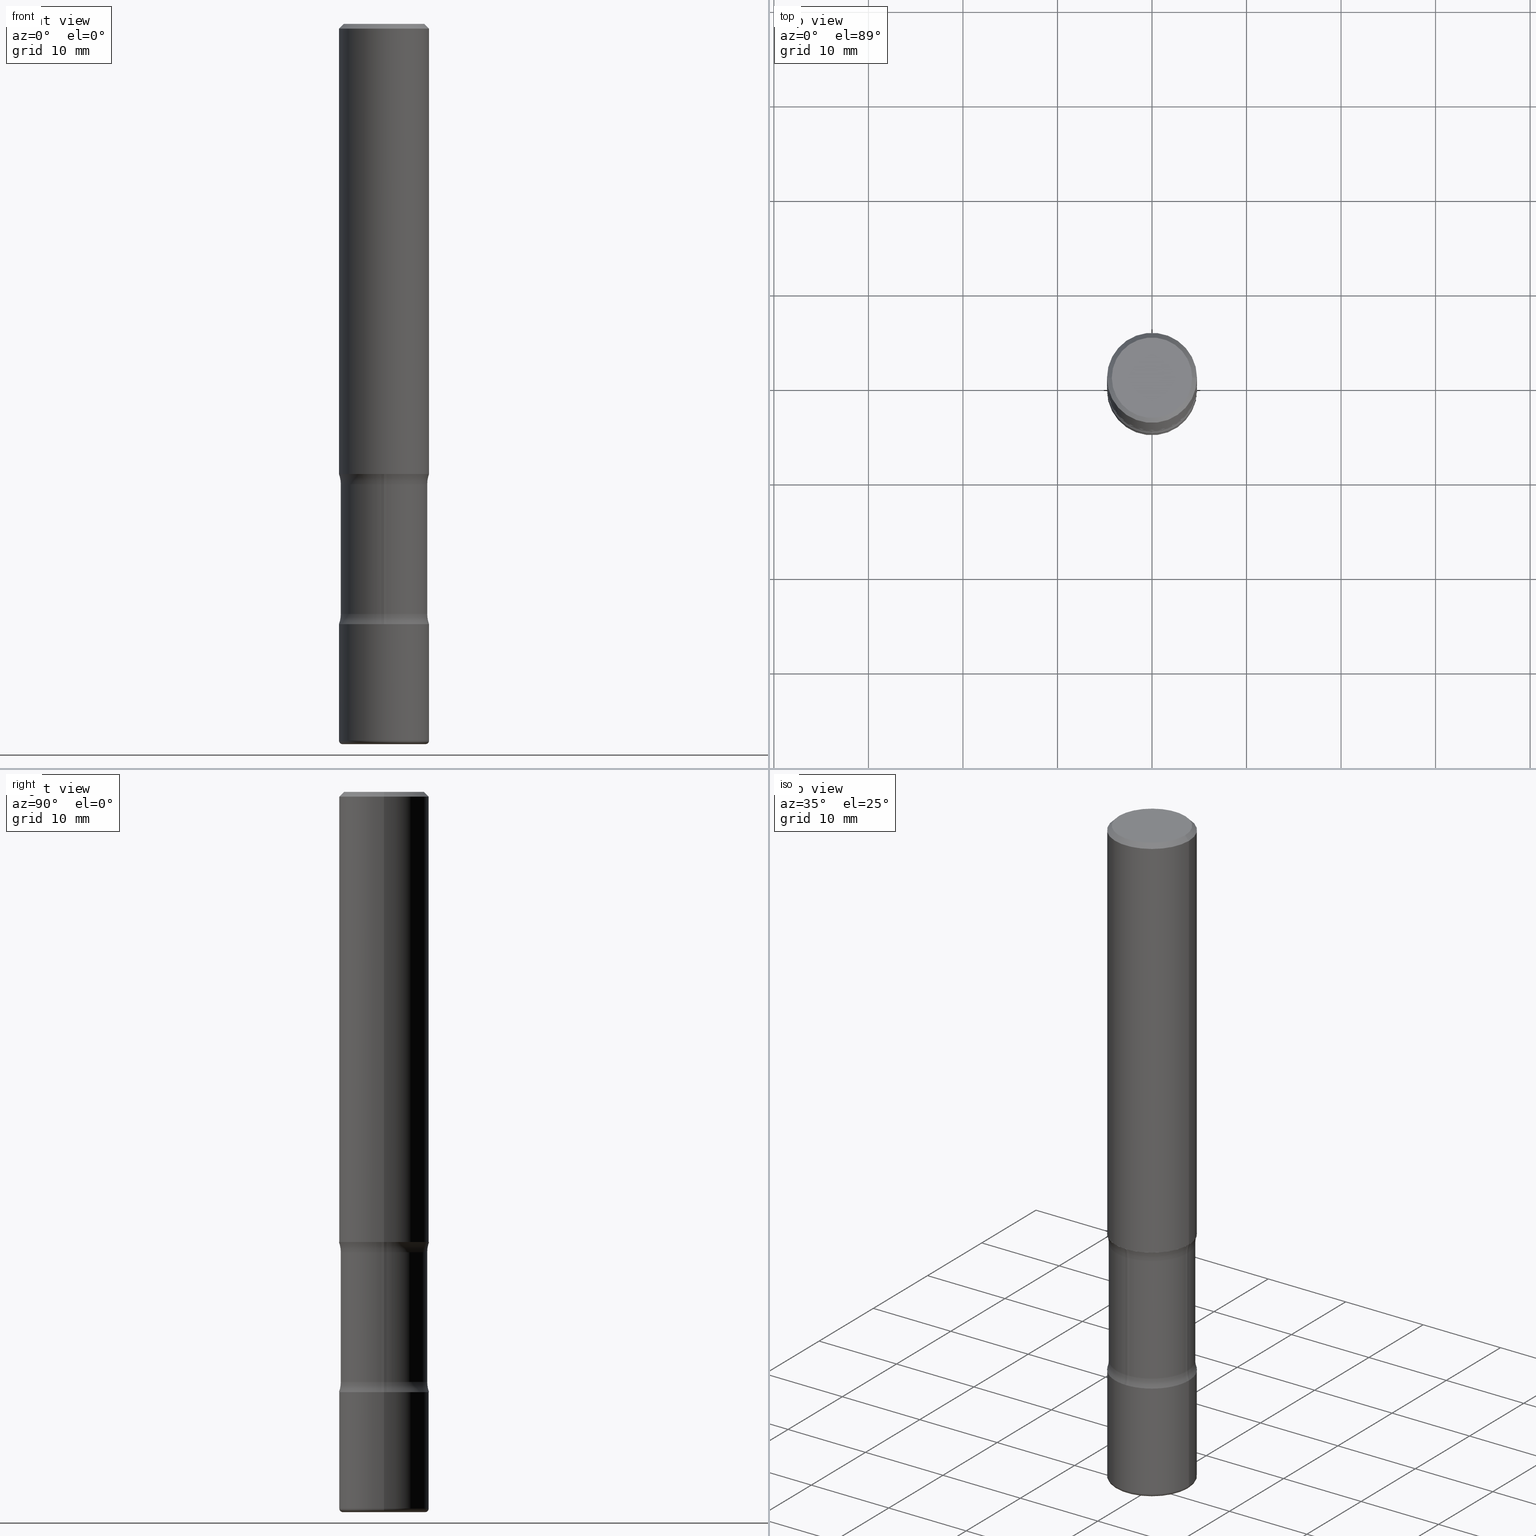
[diagram: canonical four-view strip — front | top / right | iso, engineering-drawing reading convention]
A machine part, canonical four-view strip (front | top / right | iso — engineering-drawing reading convention). The complete STEP part file that produces these views, byte-faithful:
ISO-10303-21;
HEADER;
FILE_DESCRIPTION (( 'STEP AP203' ),
    '1' );
FILE_NAME ('36239.STEP',
    '2023-03-11T07:12:13',
    ( '' ),
    ( '' ),
    'SwSTEP 2.0',
    'SolidWorks 2022',
    '' );
FILE_SCHEMA (( 'CONFIG_CONTROL_DESIGN' ));
ENDSEC;

DATA;
#1 = EDGE_LOOP ( 'NONE', ( #394, #315, #252, #613 ) ) ;
#2 = DIRECTION ( 'NONE',  ( 6.982962677686265133E-15, 1.000000000000000000, -3.035386659626957554E-15 ) ) ;
#3 = DIRECTION ( 'NONE',  ( -1.000000000000000000, 7.105427357601001859E-15, 0.000000000000000000 ) ) ;
#4 = EDGE_LOOP ( 'NONE', ( #538, #226, #294, #43 ) ) ;
#5 = FACE_OUTER_BOUND ( 'NONE', #420, .T. ) ;
#6 = DIRECTION ( 'NONE',  ( -2.445468806185136597E-29, 3.491481338843145583E-15, 1.000000000000000000 ) ) ;
#7 = AXIS2_PLACEMENT_3D ( 'NONE', #374, #740, #181 ) ;
#8 = AXIS2_PLACEMENT_3D ( 'NONE', #445, #66, #572 ) ;
#9 = ORIENTED_EDGE ( 'NONE', *, *, #385, .F. ) ;
#10 = DIRECTION ( 'NONE',  ( -2.445468806185136597E-29, 3.491481338843145583E-15, 1.000000000000000000 ) ) ;
#11 = CARTESIAN_POINT ( 'NONE',  ( 6.838086267733839931E-28, 7.694469178072711128E-14, -3.000000000000000888 ) ) ;
#12 = ORIENTED_EDGE ( 'NONE', *, *, #57, .T. ) ;
#13 = EDGE_CURVE ( 'NONE', #509, #795, #154, .T. ) ;
#14 = CARTESIAN_POINT ( 'NONE',  ( -0.1800000000000000488, -7.348630807762562010E-15, -2.457353194726920265 ) ) ;
#15 = DIRECTION ( 'NONE',  ( 2.445468806185136597E-29, -3.491481338843145583E-15, -1.000000000000000000 ) ) ;
#16 = DIRECTION ( 'NONE',  ( 1.000000000000000000, -6.982962677686267499E-15, 4.883557194083113462E-29 ) ) ;
#17 = EDGE_CURVE ( 'NONE', #686, #134, #622, .T. ) ;
#18 = CARTESIAN_POINT ( 'NONE',  ( 2.129803616694357811E-15, 0.3049999999999932765, -1.917646805273081290 ) ) ;
#19 = DIRECTION ( 'NONE',  ( 1.000000000000000000, -6.982962677686266711E-15, 0.000000000000000000 ) ) ;
#20 = AXIS2_PLACEMENT_3D ( 'NONE', #393, #564, #320 ) ;
#21 = DIRECTION ( 'NONE',  ( 2.552515368040489607E-29, -3.338184569554352070E-15, -1.000000000000000000 ) ) ;
#22 = CIRCLE ( 'NONE', #478, 0.1674999999999997602 ) ;
#23 = DATE_TIME_ROLE ( 'creation_date' ) ;
#24 = DIRECTION ( 'NONE',  ( -2.445468806185136877E-29, 3.491481338843145188E-15, 1.000000000000000000 ) ) ;
#25 = ADVANCED_FACE ( 'NONE', ( #82 ), #565, .T. ) ;
#26 = ORIENTED_EDGE ( 'NONE', *, *, #705, .T. ) ;
#27 = CALENDAR_DATE ( 2023, 11, 3 ) ;
#28 = DIRECTION ( 'NONE',  ( -0.7071067811865472397, 2.468850131082253905E-15, -0.7071067811865477948 ) ) ;
#29 = EDGE_CURVE ( 'NONE', #521, #38, #269, .T. ) ;
#30 = DIRECTION ( 'NONE',  ( 1.000000000000000000, -6.982962677686269077E-15, 0.000000000000000000 ) ) ;
#31 = PERSON_AND_ORGANIZATION ( #366, #157 ) ;
#32 = CARTESIAN_POINT ( 'NONE',  ( 1.026633993897603576E-29, -1.601363133021256370E-14, -2.500000000000000000 ) ) ;
#33 = ORIENTED_EDGE ( 'NONE', *, *, #222, .T. ) ;
#34 = CIRCLE ( 'NONE', #75, 0.1875000000000000278 ) ;
#35 = VECTOR ( 'NONE', #28, 39.37007874015748143 ) ;
#36 = PERSON_AND_ORGANIZATION ( #366, #157 ) ;
#37 = CARTESIAN_POINT ( 'NONE',  ( 0.1800000000000000211, -7.803460792314427030E-15, -1.875000000000000000 ) ) ;
#38 = VERTEX_POINT ( 'NONE', #706 ) ;
#39 = DIRECTION ( 'NONE',  ( 1.000000000000000000, -6.982962677686265922E-15, 4.876176775795935793E-29 ) ) ;
#40 = ORIENTED_EDGE ( 'NONE', *, *, #248, .T. ) ;
#41 = EDGE_CURVE ( 'NONE', #386, #255, #533, .T. ) ;
#42 = DIRECTION ( 'NONE',  ( 2.552515368040489607E-29, -3.338184569554351675E-15, -1.000000000000000000 ) ) ;
#43 = ORIENTED_EDGE ( 'NONE', *, *, #53, .F. ) ;
#44 = CIRCLE ( 'NONE', #774, 0.1249999999999999584 ) ;
#45 = AXIS2_PLACEMENT_3D ( 'NONE', #694, #209, #459 ) ;
#46 = CARTESIAN_POINT ( 'NONE',  ( 1.036015759855943540E-27, -1.479155932447654588E-13, -42.36470967184812508 ) ) ;
#47 = CIRCLE ( 'NONE', #779, 0.1674999999999997602 ) ;
#48 = EDGE_CURVE ( 'NONE', #768, #255, #650, .T. ) ;
#49 = DIRECTION ( 'NONE',  ( 6.982962677686266711E-15, 1.000000000000000000, -3.338184569554351675E-15 ) ) ;
#50 = EDGE_LOOP ( 'NONE', ( #607, #290, #160, #698 ) ) ;
#51 = DIRECTION ( 'NONE',  ( -2.445468806185136597E-29, 3.491481338843145583E-15, 1.000000000000000000 ) ) ;
#52 = DIRECTION ( 'NONE',  ( 1.000000000000000000, -6.982962677686266711E-15, 0.000000000000000000 ) ) ;
#53 = EDGE_CURVE ( 'NONE', #238, #587, #150, .T. ) ;
#54 = EDGE_LOOP ( 'NONE', ( #276, #147 ) ) ;
#55 = DIRECTION ( 'NONE',  ( 6.982962677686266711E-15, 1.000000000000000000, -2.913971193241879189E-15 ) ) ;
#56 = DIRECTION ( 'NONE',  ( -2.438088387897960049E-29, 3.491481338843145188E-15, 1.000000000000000000 ) ) ;
#57 = EDGE_CURVE ( 'NONE', #122, #587, #649, .T. ) ;
#58 = EDGE_LOOP ( 'NONE', ( #430, #375 ) ) ;
#59 = AXIS2_PLACEMENT_3D ( 'NONE', #272, #515, #719 ) ;
#60 = DIRECTION ( 'NONE',  ( 1.000000000000000000, -6.982962677686266711E-15, 0.000000000000000000 ) ) ;
#61 = CIRCLE ( 'NONE', #752, 0.1799999999999999933 ) ;
#62 = CARTESIAN_POINT ( 'NONE',  ( 0.000000000000000000, 0.000000000000000000, 0.000000000000000000 ) ) ;
#63 = AXIS2_PLACEMENT_3D ( 'NONE', #46, #559, #626 ) ;
#64 = AXIS2_PLACEMENT_3D ( 'NONE', #88, #148, #657 ) ;
#65 = ORIENTED_EDGE ( 'NONE', *, *, #110, .T. ) ;
#66 = DIRECTION ( 'NONE',  ( -6.982962677686266711E-15, -1.000000000000000000, 3.491481338843145583E-15 ) ) ;
#67 = CYLINDRICAL_SURFACE ( 'NONE', #165, 0.1875000000000000555 ) ;
#68 = ORIENTED_EDGE ( 'NONE', *, *, #443, .F. ) ;
#69 = EDGE_CURVE ( 'NONE', #680, #134, #781, .T. ) ;
#70 = CARTESIAN_POINT ( 'NONE',  ( 6.113672015462842613E-29, -8.728703347107864943E-15, -2.500000000000000000 ) ) ;
#71 = ORIENTED_EDGE ( 'NONE', *, *, #48, .T. ) ;
#72 = MANIFOLD_SOLID_BREP ( 'Body-Move/Copy2[3]', #763 ) ;
#73 = CARTESIAN_POINT ( 'NONE',  ( 6.009380583484073203E-29, -8.579802822335628395E-15, -2.457353194726920265 ) ) ;
#74 = PLANE ( 'NONE',  #727 ) ;
#75 = AXIS2_PLACEMENT_3D ( 'NONE', #631, #6, #258 ) ;
#76 = AXIS2_PLACEMENT_3D ( 'NONE', #415, #669, #112 ) ;
#77 = CC_DESIGN_APPROVAL ( #212, ( #755 ) ) ;
#78 = ORIENTED_EDGE ( 'NONE', *, *, #408, .T. ) ;
#79 =( NAMED_UNIT ( * ) PLANE_ANGLE_UNIT ( ) SI_UNIT ( $, .RADIAN. ) );
#80 = EDGE_CURVE ( 'NONE', #386, #38, #579, .T. ) ;
#81 = DIRECTION ( 'NONE',  ( -6.982962677686265922E-15, -1.000000000000000000, 3.338184569554352070E-15 ) ) ;
#82 = FACE_OUTER_BOUND ( 'NONE', #50, .T. ) ;
#83 = PLANE ( 'NONE',  #383 ) ;
#84 = CARTESIAN_POINT ( 'NONE',  ( 6.009380583484073203E-29, -8.579802822335626818E-15, -2.457353194726920265 ) ) ;
#85 = VERTEX_POINT ( 'NONE', #677 ) ;
#86 = PRODUCT_DEFINITION_SHAPE ( 'NONE', 'NONE',  #755 ) ;
#87 = EDGE_CURVE ( 'NONE', #567, #792, #89, .T. ) ;
#88 = CARTESIAN_POINT ( 'NONE',  ( 0.000000000000000000, 0.000000000000000000, 0.000000000000000000 ) ) ;
#89 = CIRCLE ( 'NONE', #229, 0.1875000000000000278 ) ;
#90 = AXIS2_PLACEMENT_3D ( 'NONE', #786, #213, #99 ) ;
#91 = DIRECTION ( 'NONE',  ( -2.445468806185136597E-29, 3.491481338843145583E-15, 1.000000000000000000 ) ) ;
#92 = AXIS2_PLACEMENT_3D ( 'NONE', #119, #687, #291 ) ;
#93 = PRODUCT_DEFINITION_FORMATION_WITH_SPECIFIED_SOURCE ( 'ANY', '', #145, .NOT_KNOWN. ) ;
#94 = SECURITY_CLASSIFICATION_LEVEL ( 'unclassified' ) ;
#95 = PLANE ( 'NONE',  #355 ) ;
#96 = SHAPE_DEFINITION_REPRESENTATION ( #86, #113 ) ;
#97 = ORIENTED_EDGE ( 'NONE', *, *, #69, .T. ) ;
#98 = PERSON_AND_ORGANIZATION ( #366, #157 ) ;
#99 = DIRECTION ( 'NONE',  ( 1.000000000000000000, -6.982962677686265133E-15, 0.000000000000000000 ) ) ;
#100 = EDGE_CURVE ( 'NONE', #587, #486, #330, .T. ) ;
#101 = CC_DESIGN_DATE_AND_TIME_ASSIGNMENT ( #277, #772, ( #667 ) ) ;
#102 = ORIENTED_EDGE ( 'NONE', *, *, #502, .F. ) ;
#103 = ORIENTED_EDGE ( 'NONE', *, *, #29, .F. ) ;
#104 = PERSON_AND_ORGANIZATION_ROLE ( 'design_owner' ) ;
#105 = CARTESIAN_POINT ( 'NONE',  ( 4.590672470405395871E-16, -1.045569801472035299E-14, -2.994630931690644982 ) ) ;
#106 = AXIS2_PLACEMENT_3D ( 'NONE', #501, #135, #314 ) ;
#107 = CONICAL_SURFACE ( 'NONE', #63, 1127.411546571520148, 1.535889741755011251 ) ;
#108 = DIRECTION ( 'NONE',  ( 2.552515368040489607E-29, -3.338184569554351675E-15, -1.000000000000000000 ) ) ;
#109 = EDGE_CURVE ( 'NONE', #299, #134, #44, .T. ) ;
#110 = EDGE_CURVE ( 'NONE', #795, #509, #423, .T. ) ;
#111 = ORIENTED_EDGE ( 'NONE', *, *, #702, .F. ) ;
#112 = DIRECTION ( 'NONE',  ( 1.000000000000000000, -6.982962677686263555E-15, 0.000000000000000000 ) ) ;
#113 = ADVANCED_BREP_SHAPE_REPRESENTATION ( '36239', ( #606, #612, #72, #609, #64 ), #789 ) ;
#114 = VERTEX_POINT ( 'NONE', #481 ) ;
#115 = CARTESIAN_POINT ( 'NONE',  ( 4.585254011597131119E-29, -6.546527510330898707E-15, -1.875000000000000000 ) ) ;
#116 = CARTESIAN_POINT ( 'NONE',  ( 6.113672015462842613E-29, -8.728703347107864943E-15, -2.500000000000000000 ) ) ;
#117 = EDGE_LOOP ( 'NONE', ( #749, #468, #555 ) ) ;
#118 = TOROIDAL_SURFACE ( 'NONE', #20, 0.3050000000000000488, 0.1250000000000000000 ) ;
#119 = CARTESIAN_POINT ( 'NONE',  ( 1.026633993897603576E-29, -1.601363133021256370E-14, -2.500000000000000000 ) ) ;
#120 = CONICAL_SURFACE ( 'NONE', #295, 0.1874999999999997780, 0.7853981633974479459 ) ;
#121 = CARTESIAN_POINT ( 'NONE',  ( -2.092451889320271262E-15, -0.3050000000000068767, -1.917646805273079069 ) ) ;
#122 = VERTEX_POINT ( 'NONE', #236 ) ;
#123 = FACE_OUTER_BOUND ( 'NONE', #734, .T. ) ;
#124 = PLANE ( 'NONE',  #257 ) ;
#125 = ORIENTED_EDGE ( 'NONE', *, *, #602, .T. ) ;
#126 = UNCERTAINTY_MEASURE_WITH_UNIT (LENGTH_MEASURE( 1.000000000000000082E-05 ), #199, 'distance_accuracy_value', 'NONE');
#127 = DIRECTION ( 'NONE',  ( 6.860497997771529985E-15, 1.000000000000000000, 0.000000000000000000 ) ) ;
#128 = VERTEX_POINT ( 'NONE', #797 ) ;
#129 = VECTOR ( 'NONE', #333, 39.37007874015748143 ) ;
#130 = FACE_OUTER_BOUND ( 'NONE', #198, .T. ) ;
#131 = AXIS2_PLACEMENT_3D ( 'NONE', #699, #641, #81 ) ;
#132 = FACE_OUTER_BOUND ( 'NONE', #785, .T. ) ;
#133 = CIRCLE ( 'NONE', #259, 0.1875000000000000555 ) ;
#134 = VERTEX_POINT ( 'NONE', #354 ) ;
#135 = DIRECTION ( 'NONE',  ( 2.552515368040489607E-29, -3.338184569554351675E-15, -1.000000000000000000 ) ) ;
#136 = EDGE_LOOP ( 'NONE', ( #230, #33 ) ) ;
#137 = CARTESIAN_POINT ( 'NONE',  ( 1.256933281983588277E-15, 0.1799999999999915001, -2.457353194726920709 ) ) ;
#138 = DIRECTION ( 'NONE',  ( 1.000000000000000000, -6.982962677686265922E-15, 4.876176775795935793E-29 ) ) ;
#139 = EDGE_LOOP ( 'NONE', ( #283, #170, #571, #596 ) ) ;
#140 = CARTESIAN_POINT ( 'NONE',  ( -1.260616507090458127E-15, -0.1800000000000086253, -2.457353194726919376 ) ) ;
#141 = CIRCLE ( 'NONE', #592, 0.1875000000000000278 ) ;
#142 = AXIS2_PLACEMENT_3D ( 'NONE', #18, #563, #696 ) ;
#143 = EDGE_LOOP ( 'NONE', ( #545, #97, #742, #668 ) ) ;
#144 = DIRECTION ( 'NONE',  ( -2.445468806185136597E-29, 3.491481338843145583E-15, 1.000000000000000000 ) ) ;
#145 = PRODUCT ( '36239', '36239', '', ( #769 ) ) ;
#146 = CYLINDRICAL_SURFACE ( 'NONE', #652, 0.1875000000000000555 ) ;
#147 = ORIENTED_EDGE ( 'NONE', *, *, #590, .T. ) ;
#148 = DIRECTION ( 'NONE',  ( 0.000000000000000000, 0.000000000000000000, 1.000000000000000000 ) ) ;
#149 = DIRECTION ( 'NONE',  ( -2.445468806185136597E-29, 3.491481338843145583E-15, 1.000000000000000000 ) ) ;
#150 = LINE ( 'NONE', #405, #368 ) ;
#151 = ADVANCED_FACE ( 'NONE', ( #736 ), #465, .T. ) ;
#152 = APPLICATION_PROTOCOL_DEFINITION ( 'international standard', 'config_control_design', 1994, #196 ) ;
#153 = DIRECTION ( 'NONE',  ( -2.438088387897960049E-29, 3.491481338843145188E-15, 1.000000000000000000 ) ) ;
#154 = CIRCLE ( 'NONE', #59, 0.1725000000000000144 ) ;
#155 = ORIENTED_EDGE ( 'NONE', *, *, #263, .F. ) ;
#156 = VECTOR ( 'NONE', #556, 39.37007874015748143 ) ;
#157 = ORGANIZATION ( 'UNSPECIFIED', 'UNSPECIFIED', '' ) ;
#158 = CALENDAR_DATE ( 2023, 11, 3 ) ;
#159 = DIRECTION ( 'NONE',  ( 1.000000000000000000, -6.982962677686266711E-15, 0.000000000000000000 ) ) ;
#160 = ORIENTED_EDGE ( 'NONE', *, *, #482, .T. ) ;
#161 = PERSON_AND_ORGANIZATION ( #366, #157 ) ;
#162 = DIRECTION ( 'NONE',  ( 6.982962677686266711E-15, 1.000000000000000000, -3.035386659626958343E-15 ) ) ;
#163 = APPROVAL_STATUS ( 'not_yet_approved' ) ;
#164 = CARTESIAN_POINT ( 'NONE',  ( -0.1674999999999997602, 1.204561061900879075E-15, 4.268512490092109750E-18 ) ) ;
#165 = AXIS2_PLACEMENT_3D ( 'NONE', #62, #561, #432 ) ;
#166 = ORIENTED_EDGE ( 'NONE', *, *, #348, .T. ) ;
#167 = AXIS2_PLACEMENT_3D ( 'NONE', #431, #487, #618 ) ;
#168 = DIRECTION ( 'NONE',  ( 1.000000000000000000, -6.982962677686329031E-15, 0.000000000000000000 ) ) ;
#169 = APPROVAL ( #280, 'UNSPECIFIED' ) ;
#170 = ORIENTED_EDGE ( 'NONE', *, *, #322, .T. ) ;
#171 = DIRECTION ( 'NONE',  ( -2.445468806185136597E-29, 3.491481338843145583E-15, 1.000000000000000000 ) ) ;
#172 = CARTESIAN_POINT ( 'NONE',  ( 4.585254011597131119E-29, -6.546527510330898707E-15, -1.875000000000000000 ) ) ;
#173 = ORIENTED_EDGE ( 'NONE', *, *, #361, .F. ) ;
#174 = DIRECTION ( 'NONE',  ( -1.000000000000000000, 7.105427357601050768E-15, 0.000000000000000000 ) ) ;
#175 = FACE_OUTER_BOUND ( 'NONE', #575, .T. ) ;
#176 = ORIENTED_EDGE ( 'NONE', *, *, #514, .T. ) ;
#177 = CIRCLE ( 'NONE', #678, 0.1875000000000000555 ) ;
#178 = ADVANCED_FACE ( 'NONE', ( #175 ), #764, .F. ) ;
#179 = TOROIDAL_SURFACE ( 'NONE', #167, 0.3049999999999999378, 0.1249999999999999584 ) ;
#180 = DIRECTION ( 'NONE',  ( 2.445468806185136597E-29, -3.491481338843145583E-15, -1.000000000000000000 ) ) ;
#181 = DIRECTION ( 'NONE',  ( 1.000000000000000000, -6.982962677686266711E-15, 0.000000000000000000 ) ) ;
#182 = ORIENTED_EDGE ( 'NONE', *, *, #502, .T. ) ;
#183 = ADVANCED_FACE ( 'NONE', ( #603 ), #568, .F. ) ;
#184 = DIRECTION ( 'NONE',  ( 2.552515368040489607E-29, -3.338184569554351675E-15, -1.000000000000000000 ) ) ;
#185 = DIRECTION ( 'NONE',  ( 1.000000000000000000, -6.982962677686261977E-15, 0.000000000000000000 ) ) ;
#186 = EDGE_CURVE ( 'NONE', #804, #323, #298, .T. ) ;
#187 = VERTEX_POINT ( 'NONE', #422 ) ;
#188 = DIRECTION ( 'NONE',  ( 1.000000000000000000, -6.982962677686265133E-15, 0.000000000000000000 ) ) ;
#189 = CARTESIAN_POINT ( 'NONE',  ( 7.299724386462632472E-29, -1.042207179644678967E-14, -2.984999999999999876 ) ) ;
#190 = EDGE_CURVE ( 'NONE', #238, #520, #489, .T. ) ;
#191 = ORIENTED_EDGE ( 'NONE', *, *, #721, .T. ) ;
#192 = CARTESIAN_POINT ( 'NONE',  ( 7.299724386462632472E-29, -1.042207179644678967E-14, -2.984999999999999876 ) ) ;
#193 = CIRCLE ( 'NONE', #623, 0.1875000000000000278 ) ;
#194 = CYLINDRICAL_SURFACE ( 'NONE', #317, 0.1874999999999999167 ) ;
#195 = ORIENTED_EDGE ( 'NONE', *, *, #482, .F. ) ;
#196 = APPLICATION_CONTEXT ( 'configuration controlled 3d designs of mechanical parts and assemblies' ) ;
#197 = CARTESIAN_POINT ( 'NONE',  ( 2.129803616694371616E-15, 0.3049999999999914446, -2.457353194726921597 ) ) ;
#198 = EDGE_LOOP ( 'NONE', ( #670, #536, #40, #9 ) ) ;
#199 =( CONVERSION_BASED_UNIT ( 'INCH', #759 ) LENGTH_UNIT ( ) NAMED_UNIT ( #341 ) );
#200 = DIRECTION ( 'NONE',  ( 1.000000000000000000, -6.982962677686266711E-15, 0.000000000000000000 ) ) ;
#201 = ORIENTED_EDGE ( 'NONE', *, *, #370, .F. ) ;
#202 = FACE_OUTER_BOUND ( 'NONE', #329, .T. ) ;
#203 = CLOSED_SHELL ( 'NONE', ( #344, #237, #151, #297, #25, #352, #635, #642 ) ) ;
#204 = DIRECTION ( 'NONE',  ( -2.445468806185136597E-29, 3.491481338843145583E-15, 1.000000000000000000 ) ) ;
#205 = CONICAL_SURFACE ( 'NONE', #411, 0.1874999999999997780, 0.7853981633974479459 ) ;
#206 = TOROIDAL_SURFACE ( 'NONE', #412, 0.3050000000000000488, 0.1250000000000000000 ) ;
#207 = ORIENTED_EDGE ( 'NONE', *, *, #408, .F. ) ;
#208 = DIRECTION ( 'NONE',  ( 1.000000000000000000, -6.982962677686270655E-15, 0.000000000000000000 ) ) ;
#209 = DIRECTION ( 'NONE',  ( 2.552515368040489607E-29, -3.338184569554351675E-15, -1.000000000000000000 ) ) ;
#210 = CARTESIAN_POINT ( 'NONE',  ( 4.689545443575900529E-29, -6.695428035103134465E-15, -1.917646805273080179 ) ) ;
#211 = PERSON_AND_ORGANIZATION_ROLE ( 'design_supplier' ) ;
#212 = APPROVAL ( #461, 'UNSPECIFIED' ) ;
#213 = DIRECTION ( 'NONE',  ( -6.982962677686266711E-15, -1.000000000000000000, 3.491481338843145583E-15 ) ) ;
#214 = ORIENTED_EDGE ( 'NONE', *, *, #547, .T. ) ;
#215 = PERSON_AND_ORGANIZATION ( #366, #157 ) ;
#216 = FACE_OUTER_BOUND ( 'NONE', #139, .T. ) ;
#217 = AXIS2_PLACEMENT_3D ( 'NONE', #121, #682, #127 ) ;
#218 = CIRCLE ( 'NONE', #530, 0.1875000000000000278 ) ;
#219 = VERTEX_POINT ( 'NONE', #747 ) ;
#220 = COORDINATED_UNIVERSAL_TIME_OFFSET ( 5, 0, .BEHIND. ) ;
#221 = DIRECTION ( 'NONE',  ( 2.438088387897960049E-29, -3.491481338843145188E-15, -1.000000000000000000 ) ) ;
#222 = EDGE_CURVE ( 'NONE', #299, #128, #452, .T. ) ;
#223 = COORDINATED_UNIVERSAL_TIME_OFFSET ( 5, 0, .BEHIND. ) ;
#224 = ADVANCED_FACE ( 'NONE', ( #429 ), #124, .F. ) ;
#225 = FACE_OUTER_BOUND ( 'NONE', #558, .T. ) ;
#226 = ORIENTED_EDGE ( 'NONE', *, *, #364, .T. ) ;
#227 = DIRECTION ( 'NONE',  ( 0.9993908270190957621, -6.978169709227537544E-15, -0.03489949670249974795 ) ) ;
#228 = EDGE_CURVE ( 'NONE', #386, #264, #553, .T. ) ;
#229 = AXIS2_PLACEMENT_3D ( 'NONE', #116, #806, #52 ) ;
#230 = ORIENTED_EDGE ( 'NONE', *, *, #247, .T. ) ;
#231 = FACE_OUTER_BOUND ( 'NONE', #491, .T. ) ;
#232 = CARTESIAN_POINT ( 'NONE',  ( -0.1800000000000000211, -5.267550585962718025E-15, -1.875000000000000000 ) ) ;
#233 = ADVANCED_FACE ( 'NONE', ( #688 ), #205, .T. ) ;
#234 = ORIENTED_EDGE ( 'NONE', *, *, #228, .T. ) ;
#235 = CARTESIAN_POINT ( 'NONE',  ( 0.1874999999999999722, -1.003800884917403995E-14, -2.500000000000000000 ) ) ;
#236 = CARTESIAN_POINT ( 'NONE',  ( 0.1674999999999997602, -1.252653207992876711E-15, 4.268512490108880748E-18 ) ) ;
#237 = ADVANCED_FACE ( 'NONE', ( #132 ), #67, .T. ) ;
#238 = VERTEX_POINT ( 'NONE', #384 ) ;
#239 = CC_DESIGN_PERSON_AND_ORGANIZATION_ASSIGNMENT ( #469, #211, ( #93 ) ) ;
#240 = FACE_OUTER_BOUND ( 'NONE', #754, .T. ) ;
#241 = DIRECTION ( 'NONE',  ( -2.445468806185136597E-29, 3.491481338843145583E-15, 1.000000000000000000 ) ) ;
#242 = ORIENTED_EDGE ( 'NONE', *, *, #110, .F. ) ;
#243 = AXIS2_PLACEMENT_3D ( 'NONE', #724, #153, #39 ) ;
#244 = CIRCLE ( 'NONE', #541, 0.1250000000000000000 ) ;
#245 = DIRECTION ( 'NONE',  ( 7.105427357601001859E-15, 1.000000000000000000, -3.491481338843145583E-15 ) ) ;
#246 = DIRECTION ( 'NONE',  ( 1.000000000000000000, -6.982962677686265133E-15, 0.000000000000000000 ) ) ;
#247 = EDGE_CURVE ( 'NONE', #128, #299, #193, .T. ) ;
#248 = EDGE_CURVE ( 'NONE', #134, #686, #61, .T. ) ;
#249 = ORIENTED_EDGE ( 'NONE', *, *, #17, .T. ) ;
#250 = CYLINDRICAL_SURFACE ( 'NONE', #624, 0.1800000000000000488 ) ;
#251 = CARTESIAN_POINT ( 'NONE',  ( 4.890937612370282792E-31, -6.982962677686303935E-17, -0.02000000000000003858 ) ) ;
#252 = ORIENTED_EDGE ( 'NONE', *, *, #186, .T. ) ;
#253 = CARTESIAN_POINT ( 'NONE',  ( -1.043851414335219820E-46, 1.490343170380447200E-32, 4.268512490100411279E-18 ) ) ;
#254 = CARTESIAN_POINT ( 'NONE',  ( 0.000000000000000000, 0.000000000000000000, 0.000000000000000000 ) ) ;
#255 = VERTEX_POINT ( 'NONE', #140 ) ;
#256 = CARTESIAN_POINT ( 'NONE',  ( 0.1725000000000000144, -1.167900507843031799E-14, -3.000000000000000444 ) ) ;
#257 = AXIS2_PLACEMENT_3D ( 'NONE', #615, #56, #620 ) ;
#258 = DIRECTION ( 'NONE',  ( 1.000000000000000000, -6.982962677686266711E-15, 0.000000000000000000 ) ) ;
#259 = AXIS2_PLACEMENT_3D ( 'NONE', #192, #144, #208 ) ;
#260 = ORIENTED_EDGE ( 'NONE', *, *, #263, .T. ) ;
#261 =( LENGTH_UNIT ( ) NAMED_UNIT ( * ) SI_UNIT ( $, .METRE. ) );
#262 = DIRECTION ( 'NONE',  ( -1.000000000000000000, 6.982962677686265922E-15, -4.883557194083112340E-29 ) ) ;
#263 = EDGE_CURVE ( 'NONE', #680, #474, #776, .T. ) ;
#264 = VERTEX_POINT ( 'NONE', #634 ) ;
#265 = CARTESIAN_POINT ( 'NONE',  ( -2.092451889320256668E-15, -0.3050000000000085976, -2.457353194726919376 ) ) ;
#266 = CARTESIAN_POINT ( 'NONE',  ( -0.1875000000000000555, -5.214259880780710070E-15, -1.875000000000000000 ) ) ;
#267 = ORIENTED_EDGE ( 'NONE', *, *, #29, .T. ) ;
#268 = CARTESIAN_POINT ( 'NONE',  ( 4.627206536294903060E-29, -6.784700898439779680E-15, -1.917646805273080179 ) ) ;
#269 = CIRCLE ( 'NONE', #726, 0.1875000000000001110 ) ;
#270 = DIRECTION ( 'NONE',  ( -2.445468806185136597E-29, 3.491481338843145583E-15, 1.000000000000000000 ) ) ;
#271 = AXIS2_PLACEMENT_3D ( 'NONE', #70, #767, #200 ) ;
#272 = CARTESIAN_POINT ( 'NONE',  ( 7.336406418555409790E-29, -1.047444401652943635E-14, -3.000000000000000444 ) ) ;
#273 = ORIENTED_EDGE ( 'NONE', *, *, #228, .F. ) ;
#274 = PERSON_AND_ORGANIZATION_ROLE ( 'creator' ) ;
#275 = DIRECTION ( 'NONE',  ( 1.000000000000000000, -6.982962677686265922E-15, 4.876176775795935793E-29 ) ) ;
#276 = ORIENTED_EDGE ( 'NONE', *, *, #782, .T. ) ;
#277 = DATE_AND_TIME ( #27, #639 ) ;
#278 = PLANE ( 'NONE',  #700 ) ;
#279 = DIRECTION ( 'NONE',  ( 6.982962677686266711E-15, 1.000000000000000000, -2.913971193241879189E-15 ) ) ;
#280 = APPROVAL_STATUS ( 'not_yet_approved' ) ;
#281 = DIRECTION ( 'NONE',  ( 2.438088387897960049E-29, -3.491481338843145188E-15, -1.000000000000000000 ) ) ;
#282 = CIRCLE ( 'NONE', #582, 0.1537500000000000255 ) ;
#283 = ORIENTED_EDGE ( 'NONE', *, *, #364, .F. ) ;
#284 = ADVANCED_FACE ( 'NONE', ( #455 ), #194, .T. ) ;
#285 = CC_DESIGN_APPROVAL ( #169, ( #667 ) ) ;
#286 = DIRECTION ( 'NONE',  ( -2.445468806185136877E-29, 3.491481338843145188E-15, 1.000000000000000000 ) ) ;
#287 = EDGE_CURVE ( 'NONE', #114, #356, #580, .T. ) ;
#288 = ORIENTED_EDGE ( 'NONE', *, *, #287, .T. ) ;
#289 = LINE ( 'NONE', #526, #690 ) ;
#290 = ORIENTED_EDGE ( 'NONE', *, *, #13, .T. ) ;
#291 = DIRECTION ( 'NONE',  ( -1.000000000000000000, 6.982962677686265922E-15, -4.876176775795935793E-29 ) ) ;
#292 = EDGE_CURVE ( 'NONE', #85, #323, #540, .T. ) ;
#293 = VECTOR ( 'NONE', #363, 39.37007874015748143 ) ;
#294 = ORIENTED_EDGE ( 'NONE', *, *, #100, .F. ) ;
#295 = AXIS2_PLACEMENT_3D ( 'NONE', #480, #180, #614 ) ;
#296 = DIRECTION ( 'NONE',  ( 1.000000000000000000, -6.982962677686267499E-15, 0.000000000000000000 ) ) ;
#297 = ADVANCED_FACE ( 'NONE', ( #577, #447 ), #74, .F. ) ;
#298 = LINE ( 'NONE', #488, #664 ) ;
#299 = VERTEX_POINT ( 'NONE', #266 ) ;
#300 = DIRECTION ( 'NONE',  ( 7.105427357601001859E-15, 1.000000000000000000, -3.491481338843145583E-15 ) ) ;
#301 = ORIENTED_EDGE ( 'NONE', *, *, #80, .F. ) ;
#302 = CYLINDRICAL_SURFACE ( 'NONE', #439, 0.1800000000000000211 ) ;
#303 = DIRECTION ( 'NONE',  ( 2.552515368040489607E-29, -3.338184569554351675E-15, -1.000000000000000000 ) ) ;
#304 = ADVANCED_FACE ( 'NONE', ( #328 ), #371, .F. ) ;
#305 = ADVANCED_FACE ( 'NONE', ( #508 ), #118, .F. ) ;
#306 = VERTEX_POINT ( 'NONE', #331 ) ;
#307 = AXIS2_PLACEMENT_3D ( 'NONE', #793, #51, #188 ) ;
#308 = CARTESIAN_POINT ( 'NONE',  ( 0.1874999999999997780, -1.356173001359023691E-15, -0.02000000000000003858 ) ) ;
#309 = DIRECTION ( 'NONE',  ( -2.445468806185136597E-29, 3.491481338843145583E-15, 1.000000000000000000 ) ) ;
#310 = EDGE_LOOP ( 'NONE', ( #598, #713 ) ) ;
#311 = FACE_OUTER_BOUND ( 'NONE', #625, .T. ) ;
#312 = ORIENTED_EDGE ( 'NONE', *, *, #702, .T. ) ;
#313 = CYLINDRICAL_SURFACE ( 'NONE', #467, 0.1800000000000000211 ) ;
#314 = DIRECTION ( 'NONE',  ( 6.982962677686265922E-15, 1.000000000000000000, -2.913971193241880372E-15 ) ) ;
#315 = ORIENTED_EDGE ( 'NONE', *, *, #790, .T. ) ;
#316 = AXIS2_PLACEMENT_3D ( 'NONE', #527, #775, #460 ) ;
#317 = AXIS2_PLACEMENT_3D ( 'NONE', #254, #378, #138 ) ;
#318 = CARTESIAN_POINT ( 'NONE',  ( 4.585254011597131119E-29, -6.546527510330898707E-15, -1.875000000000000000 ) ) ;
#319 = AXIS2_PLACEMENT_3D ( 'NONE', #773, #535, #159 ) ;
#320 = DIRECTION ( 'NONE',  ( 1.000000000000000000, -6.982962677686266711E-15, 4.883557194083112340E-29 ) ) ;
#321 = CIRCLE ( 'NONE', #532, 0.1250000000000000278 ) ;
#322 = EDGE_CURVE ( 'NONE', #520, #238, #34, .T. ) ;
#323 = VERTEX_POINT ( 'NONE', #756 ) ;
#324 = DIRECTION ( 'NONE',  ( 6.982962677686265922E-15, 1.000000000000000000, -3.338184569554352070E-15 ) ) ;
#325 = FACE_OUTER_BOUND ( 'NONE', #117, .T. ) ;
#326 = EDGE_CURVE ( 'NONE', #356, #768, #505, .T. ) ;
#327 = DIRECTION ( 'NONE',  ( 6.982962677686266711E-15, 1.000000000000000000, -3.035386659626958343E-15 ) ) ;
#328 = FACE_OUTER_BOUND ( 'NONE', #632, .T. ) ;
#329 = EDGE_LOOP ( 'NONE', ( #346, #234, #125, #414 ) ) ;
#330 = CIRCLE ( 'NONE', #397, 0.1874999999999997780 ) ;
#331 = CARTESIAN_POINT ( 'NONE',  ( -0.1875000000000001110, -9.089804166896598665E-15, -2.984999999999999876 ) ) ;
#332 = CIRCLE ( 'NONE', #319, 0.1875000000000000278 ) ;
#333 = DIRECTION ( 'NONE',  ( 0.7071067811865472397, -7.319954787623254468E-15, -0.7071067811865477948 ) ) ;
#334 = COORDINATED_UNIVERSAL_TIME_OFFSET ( 5, 0, .BEHIND. ) ;
#335 = CARTESIAN_POINT ( 'NONE',  ( 1.169646248512447820E-15, 0.1674999999999997602, -5.826888680111757675E-16 ) ) ;
#336 = ADVANCED_FACE ( 'NONE', ( #697 ), #450, .F. ) ;
#337 = ORIENTED_EDGE ( 'NONE', *, *, #560, .F. ) ;
#338 = PERSON_AND_ORGANIZATION ( #366, #157 ) ;
#339 = DIRECTION ( 'NONE',  ( -2.445468806185136597E-29, 3.491481338843145583E-15, 1.000000000000000000 ) ) ;
#340 = CARTESIAN_POINT ( 'NONE',  ( 0.1874999999999997780, -1.356173001359023691E-15, -0.02000000000000003858 ) ) ;
#341 = DIMENSIONAL_EXPONENTS ( 1.000000000000000000, 0.000000000000000000, 0.000000000000000000, 0.000000000000000000, 0.000000000000000000, 0.000000000000000000, 0.000000000000000000 ) ;
#342 = DIRECTION ( 'NONE',  ( 2.552515368040489607E-29, -3.338184569554351675E-15, -1.000000000000000000 ) ) ;
#343 = AXIS2_PLACEMENT_3D ( 'NONE', #172, #309, #419 ) ;
#344 = ADVANCED_FACE ( 'NONE', ( #325 ), #636, .F. ) ;
#345 = AXIS2_PLACEMENT_3D ( 'NONE', #73, #510, #707 ) ;
#346 = ORIENTED_EDGE ( 'NONE', *, *, #41, .F. ) ;
#347 = CARTESIAN_POINT ( 'NONE',  ( 1.309305502066235948E-15, 0.1874999999999912292, -2.500000000000000444 ) ) ;
#348 = EDGE_CURVE ( 'NONE', #792, #567, #218, .T. ) ;
#349 = ORIENTED_EDGE ( 'NONE', *, *, #248, .F. ) ;
#350 = CARTESIAN_POINT ( 'NONE',  ( -0.3050000000000000488, -6.412647478267322481E-15, -2.457353194726920265 ) ) ;
#351 = ORIENTED_EDGE ( 'NONE', *, *, #380, .T. ) ;
#352 = ADVANCED_FACE ( 'NONE', ( #704 ), #146, .T. ) ;
#353 = CARTESIAN_POINT ( 'NONE',  ( -0.1725000000000000144, -9.169280982119931541E-15, -3.000000000000000444 ) ) ;
#354 = CARTESIAN_POINT ( 'NONE',  ( -0.1799999999999999933, -5.315355495757832321E-15, -1.917646805273080179 ) ) ;
#355 = AXIS2_PLACEMENT_3D ( 'NONE', #335, #221, #473 ) ;
#356 = VERTEX_POINT ( 'NONE', #347 ) ;
#357 = AXIS2_PLACEMENT_3D ( 'NONE', #675, #42, #493 ) ;
#358 = CARTESIAN_POINT ( 'NONE',  ( -0.1875000000000000555, 1.332267629550188243E-15, -9.223003294227950793E-30 ) ) ;
#359 = CARTESIAN_POINT ( 'NONE',  ( 4.689545443575900529E-29, -6.695428035103134465E-15, -1.917646805273080179 ) ) ;
#360 = ORIENTED_EDGE ( 'NONE', *, *, #247, .F. ) ;
#361 = EDGE_CURVE ( 'NONE', #804, #306, #177, .T. ) ;
#362 = FACE_OUTER_BOUND ( 'NONE', #143, .T. ) ;
#363 = DIRECTION ( 'NONE',  ( -2.445468806185136877E-29, 3.491481338843145188E-15, 1.000000000000000000 ) ) ;
#364 = EDGE_CURVE ( 'NONE', #520, #486, #289, .T. ) ;
#365 = ORIENTED_EDGE ( 'NONE', *, *, #348, .F. ) ;
#366 = PERSON ( 'UNSPECIFIED', 'UNSPECIFIED', 'UNSPECIFIED', ('UNSPECIFIED'), ('UNSPECIFIED'), ('UNSPECIFIED') ) ;
#367 = DIRECTION ( 'NONE',  ( 2.552515368040489607E-29, -3.338184569554351675E-15, -1.000000000000000000 ) ) ;
#368 = VECTOR ( 'NONE', #591, 39.37007874015748143 ) ;
#369 = ORIENTED_EDGE ( 'NONE', *, *, #646, .F. ) ;
#370 = EDGE_CURVE ( 'NONE', #323, #85, #332, .T. ) ;
#371 = TOROIDAL_SURFACE ( 'NONE', #45, 0.3050000000000000488, 0.1250000000000000000 ) ;
#372 = TOROIDAL_SURFACE ( 'NONE', #345, 0.3050000000000000488, 0.1250000000000000000 ) ;
#373 = DIRECTION ( 'NONE',  ( 2.552515368040489607E-29, -3.338184569554351675E-15, -1.000000000000000000 ) ) ;
#374 = CARTESIAN_POINT ( 'NONE',  ( 4.585254011597131119E-29, -6.546527510330898707E-15, -1.875000000000000000 ) ) ;
#375 = ORIENTED_EDGE ( 'NONE', *, *, #322, .F. ) ;
#376 = CYLINDRICAL_SURFACE ( 'NONE', #716, 0.1800000000000000488 ) ;
#377 = ORIENTED_EDGE ( 'NONE', *, *, #13, .F. ) ;
#378 = DIRECTION ( 'NONE',  ( -2.445468806185136597E-29, 3.491481338843145583E-15, 1.000000000000000000 ) ) ;
#379 = ORIENTED_EDGE ( 'NONE', *, *, #69, .F. ) ;
#380 = EDGE_CURVE ( 'NONE', #219, #483, #658, .T. ) ;
#381 = AXIS2_PLACEMENT_3D ( 'NONE', #717, #339, #275 ) ;
#382 = DIRECTION ( 'NONE',  ( 6.860497997771529985E-15, 1.000000000000000000, 0.000000000000000000 ) ) ;
#383 = AXIS2_PLACEMENT_3D ( 'NONE', #318, #453, #324 ) ;
#384 = CARTESIAN_POINT ( 'NONE',  ( 0.1875000000000000278, -7.855833012397073715E-15, -1.875000000000000000 ) ) ;
#385 = EDGE_CURVE ( 'NONE', #128, #686, #676, .T. ) ;
#386 = VERTEX_POINT ( 'NONE', #780 ) ;
#387 = FACE_OUTER_BOUND ( 'NONE', #725, .T. ) ;
#388 = EDGE_CURVE ( 'NONE', #219, #187, #770, .T. ) ;
#389 = ADVANCED_FACE ( 'NONE', ( #523 ), #95, .F. ) ;
#390 = CARTESIAN_POINT ( 'NONE',  ( 0.000000000000000000, 0.000000000000000000, 0.000000000000000000 ) ) ;
#391 = ORIENTED_EDGE ( 'NONE', *, *, #186, .F. ) ;
#392 = DATE_AND_TIME ( #409, #791 ) ;
#393 = CARTESIAN_POINT ( 'NONE',  ( 6.009380583484073203E-29, -8.579802822335628395E-15, -2.457353194726920265 ) ) ;
#394 = ORIENTED_EDGE ( 'NONE', *, *, #514, .F. ) ;
#395 = ADVANCED_FACE ( 'NONE', ( #216 ), #589, .T. ) ;
#396 = APPLICATION_PROTOCOL_DEFINITION ( 'international standard', 'config_control_design', 1994, #573 ) ;
#397 = AXIS2_PLACEMENT_3D ( 'NONE', #251, #794, #246 ) ;
#398 = LINE ( 'NONE', #722, #35 ) ;
#399 = AXIS2_PLACEMENT_3D ( 'NONE', #84, #583, #645 ) ;
#400 = CIRCLE ( 'NONE', #729, 0.1800000000000001044 ) ;
#401 = LOCAL_TIME ( 2, 12, 13.00000000000000000, #223 ) ;
#402 = ORIENTED_EDGE ( 'NONE', *, *, #610, .T. ) ;
#403 = COORDINATED_UNIVERSAL_TIME_OFFSET ( 5, 0, .BEHIND. ) ;
#404 = DIRECTION ( 'NONE',  ( -2.445468806185136597E-29, 3.491481338843145583E-15, 1.000000000000000000 ) ) ;
#405 = CARTESIAN_POINT ( 'NONE',  ( 0.1874999999999999167, -1.309305502066174219E-15, 9.142831454617375408E-30 ) ) ;
#406 = DATE_AND_TIME ( #720, #441 ) ;
#407 = CARTESIAN_POINT ( 'NONE',  ( 0.1800000000000000488, -9.836736104319155141E-15, -2.457353194726920265 ) ) ;
#408 = EDGE_CURVE ( 'NONE', #356, #114, #141, .T. ) ;
#409 = CALENDAR_DATE ( 2023, 11, 3 ) ;
#410 = DIRECTION ( 'NONE',  ( -6.982962677686266711E-15, -1.000000000000000000, 3.491481338843145583E-15 ) ) ;
#411 = AXIS2_PLACEMENT_3D ( 'NONE', #551, #628, #802 ) ;
#412 = AXIS2_PLACEMENT_3D ( 'NONE', #800, #608, #738 ) ;
#413 = CC_DESIGN_APPROVAL ( #748, ( #93 ) ) ;
#414 = ORIENTED_EDGE ( 'NONE', *, *, #456, .F. ) ;
#415 = CARTESIAN_POINT ( 'NONE',  ( 7.336406418555412032E-29, -1.047444401652943951E-14, -3.000000000000000888 ) ) ;
#416 = ADVANCED_FACE ( 'NONE', ( #464 ), #597, .T. ) ;
#417 = ORIENTED_EDGE ( 'NONE', *, *, #287, .F. ) ;
#418 = LINE ( 'NONE', #428, #156 ) ;
#419 = DIRECTION ( 'NONE',  ( 1.000000000000000000, -6.982962677686266711E-15, 0.000000000000000000 ) ) ;
#420 = EDGE_LOOP ( 'NONE', ( #417, #562, #499, #617 ) ) ;
#421 = CARTESIAN_POINT ( 'NONE',  ( 4.518349910437535908E-29, -6.642337991136395294E-15, -1.875000000000000000 ) ) ;
#422 = CARTESIAN_POINT ( 'NONE',  ( 0.1537500000000003864, -1.152924558368681495E-14, -3.000000000000000888 ) ) ;
#423 = CIRCLE ( 'NONE', #503, 0.1725000000000000144 ) ;
#424 = AXIS2_PLACEMENT_3D ( 'NONE', #497, #367, #49 ) ;
#425 = CIRCLE ( 'NONE', #654, 0.01500000000000014690 ) ;
#426 = EDGE_LOOP ( 'NONE', ( #242, #377 ) ) ;
#427 = CIRCLE ( 'NONE', #691, 0.1875000000000001110 ) ;
#428 = CARTESIAN_POINT ( 'NONE',  ( 1.256933281983602082E-15, 0.1799999999999896683, -2.994630931690645426 ) ) ;
#429 = FACE_OUTER_BOUND ( 'NONE', #58, .T. ) ;
#430 = ORIENTED_EDGE ( 'NONE', *, *, #190, .F. ) ;
#431 = CARTESIAN_POINT ( 'NONE',  ( 4.689545443575900529E-29, -6.695428035103134465E-15, -1.917646805273080179 ) ) ;
#432 = DIRECTION ( 'NONE',  ( 1.000000000000000000, -6.982962677686265922E-15, 4.876176775795935793E-29 ) ) ;
#433 = EDGE_LOOP ( 'NONE', ( #683, #26 ) ) ;
#434 = PLANE ( 'NONE',  #92 ) ;
#435 = DIRECTION ( 'NONE',  ( 6.982962677686265133E-15, 1.000000000000000000, -3.035386659626957554E-15 ) ) ;
#436 = ADVANCED_FACE ( 'NONE', ( #225 ), #278, .T. ) ;
#437 = ORIENTED_EDGE ( 'NONE', *, *, #709, .F. ) ;
#438 = AXIS2_PLACEMENT_3D ( 'NONE', #574, #15, #513 ) ;
#439 = AXIS2_PLACEMENT_3D ( 'NONE', #115, #805, #296 ) ;
#440 = CARTESIAN_POINT ( 'NONE',  ( 4.585254011597131119E-29, -6.546527510330898707E-15, -1.875000000000000000 ) ) ;
#441 = LOCAL_TIME ( 2, 12, 13.00000000000000000, #220 ) ;
#442 = DIRECTION ( 'NONE',  ( -2.438088387897960049E-29, 3.491481338843145188E-15, 1.000000000000000000 ) ) ;
#443 = EDGE_CURVE ( 'NONE', #463, #486, #398, .T. ) ;
#444 = ORIENTED_EDGE ( 'NONE', *, *, #361, .T. ) ;
#445 = CARTESIAN_POINT ( 'NONE',  ( 0.3050000000000000488, -1.070960643902994006E-14, -2.457353194726920265 ) ) ;
#446 = PRODUCT_RELATED_PRODUCT_CATEGORY ( 'detail', '', ( #145 ) ) ;
#447 = FACE_BOUND ( 'NONE', #433, .T. ) ;
#448 = EDGE_LOOP ( 'NONE', ( #799, #351, #692 ) ) ;
#449 =( NAMED_UNIT ( * ) SI_UNIT ( $, .STERADIAN. ) SOLID_ANGLE_UNIT ( ) );
#450 = PLANE ( 'NONE',  #131 ) ;
#451 = ORIENTED_EDGE ( 'NONE', *, *, #80, .T. ) ;
#452 = CIRCLE ( 'NONE', #343, 0.1875000000000000278 ) ;
#453 = DIRECTION ( 'NONE',  ( 2.552515368040489047E-29, -3.338184569554352070E-15, -1.000000000000000000 ) ) ;
#454 = TOROIDAL_SURFACE ( 'NONE', #357, 0.3050000000000000488, 0.1249999999999999584 ) ;
#455 = FACE_OUTER_BOUND ( 'NONE', #4, .T. ) ;
#456 = EDGE_CURVE ( 'NONE', #255, #768, #594, .T. ) ;
#457 = DIRECTION ( 'NONE',  ( 2.552515368040489607E-29, -3.338184569554351675E-15, -1.000000000000000000 ) ) ;
#458 = CARTESIAN_POINT ( 'NONE',  ( -0.1874999999999999722, -7.396435717557677094E-15, -2.500000000000000000 ) ) ;
#459 = DIRECTION ( 'NONE',  ( 6.982962677686266711E-15, 1.000000000000000000, -3.338184569554351675E-15 ) ) ;
#460 = DIRECTION ( 'NONE',  ( 6.982962677686266711E-15, 1.000000000000000000, -3.035386659626958343E-15 ) ) ;
#461 = APPROVAL_STATUS ( 'not_yet_approved' ) ;
#462 = CARTESIAN_POINT ( 'NONE',  ( 6.113672015462842613E-29, -8.728703347107864943E-15, -2.500000000000000000 ) ) ;
#463 = VERTEX_POINT ( 'NONE', #164 ) ;
#464 = FACE_OUTER_BOUND ( 'NONE', #136, .T. ) ;
#465 = TOROIDAL_SURFACE ( 'NONE', #801, 0.1725000000000000144, 0.01500000000000014690 ) ;
#466 = CC_DESIGN_PERSON_AND_ORGANIZATION_ASSIGNMENT ( #711, #783, ( #755 ) ) ;
#467 = AXIS2_PLACEMENT_3D ( 'NONE', #440, #10, #693 ) ;
#468 = ORIENTED_EDGE ( 'NONE', *, *, #388, .T. ) ;
#469 = PERSON_AND_ORGANIZATION ( #366, #157 ) ;
#470 = DIRECTION ( 'NONE',  ( -1.000000000000000000, 6.982962677686265922E-15, -4.876176775795935793E-29 ) ) ;
#471 = APPROVAL_ROLE ( '' ) ;
#472 = DESIGN_CONTEXT ( 'detailed design', #573, 'design' ) ;
#473 = DIRECTION ( 'NONE',  ( -1.000000000000000000, 6.982962677686265922E-15, -4.876176775795935793E-29 ) ) ;
#474 = VERTEX_POINT ( 'NONE', #407 ) ;
#475 = CARTESIAN_POINT ( 'NONE',  ( -0.1537500000000003864, -9.400813504835174582E-15, -3.000000000000000888 ) ) ;
#476 = EDGE_CURVE ( 'NONE', #474, #686, #593, .T. ) ;
#477 = AXIS2_PLACEMENT_3D ( 'NONE', #197, #262, #511 ) ;
#478 = AXIS2_PLACEMENT_3D ( 'NONE', #253, #703, #500 ) ;
#479 = EDGE_LOOP ( 'NONE', ( #102, #656, #745, #737 ) ) ;
#480 = CARTESIAN_POINT ( 'NONE',  ( 4.890937612370282792E-31, -6.982962677686303935E-17, -0.02000000000000003858 ) ) ;
#481 = CARTESIAN_POINT ( 'NONE',  ( -1.286343374582100440E-15, -0.1875000000000087153, -2.499999999999999556 ) ) ;
#482 = EDGE_CURVE ( 'NONE', #795, #804, #425, .T. ) ;
#483 = VERTEX_POINT ( 'NONE', #475 ) ;
#484 = DIRECTION ( 'NONE',  ( 2.552515368040489607E-29, -3.338184569554351675E-15, -1.000000000000000000 ) ) ;
#485 = DIRECTION ( 'NONE',  ( -2.445468806185136597E-29, 3.491481338843145583E-15, 1.000000000000000000 ) ) ;
#486 = VERTEX_POINT ( 'NONE', #728 ) ;
#487 = DIRECTION ( 'NONE',  ( -2.445468806185136597E-29, 3.491481338843145583E-15, 1.000000000000000000 ) ) ;
#488 = CARTESIAN_POINT ( 'NONE',  ( 0.1875000000000000555, -1.309305502066175205E-15, 9.142831454617382414E-30 ) ) ;
#489 = CIRCLE ( 'NONE', #7, 0.1875000000000000278 ) ;
#490 = CIRCLE ( 'NONE', #506, 0.01500000000000014690 ) ;
#491 = EDGE_LOOP ( 'NONE', ( #758, #12, #629, #68 ) ) ;
#492 = APPROVAL_PERSON_ORGANIZATION ( #215, #169, #528 ) ;
#493 = DIRECTION ( 'NONE',  ( 6.982962677686266711E-15, 1.000000000000000000, -3.338184569554351675E-15 ) ) ;
#494 = CARTESIAN_POINT ( 'NONE',  ( -0.3049999999999999378, -4.528272691034830129E-15, -1.917646805273080179 ) ) ;
#495 = ORIENTED_EDGE ( 'NONE', *, *, #602, .F. ) ;
#496 = DIRECTION ( 'NONE',  ( 6.982962677686266711E-15, 1.000000000000000000, -3.035386659626958343E-15 ) ) ;
#497 = CARTESIAN_POINT ( 'NONE',  ( 4.618008971397639462E-29, -6.797872334865544706E-15, -1.917646805273080179 ) ) ;
#498 = EDGE_CURVE ( 'NONE', #483, #187, #638, .T. ) ;
#499 = ORIENTED_EDGE ( 'NONE', *, *, #456, .T. ) ;
#500 = DIRECTION ( 'NONE',  ( 1.000000000000000000, -6.982962677686265922E-15, 4.875936752492899929E-29 ) ) ;
#501 = CARTESIAN_POINT ( 'NONE',  ( 6.113672015462842613E-29, -8.728703347107864943E-15, -2.500000000000000000 ) ) ;
#502 = EDGE_CURVE ( 'NONE', #680, #792, #321, .T. ) ;
#503 = AXIS2_PLACEMENT_3D ( 'NONE', #744, #485, #185 ) ;
#504 = EDGE_LOOP ( 'NONE', ( #191, #701, #765, #495 ) ) ;
#505 = CIRCLE ( 'NONE', #477, 0.1250000000000000000 ) ;
#506 = AXIS2_PLACEMENT_3D ( 'NONE', #796, #245, #174 ) ;
#507 = DIRECTION ( 'NONE',  ( 1.000000000000000000, -6.982962677686263555E-15, 0.000000000000000000 ) ) ;
#508 = FACE_OUTER_BOUND ( 'NONE', #479, .T. ) ;
#509 = VERTEX_POINT ( 'NONE', #353 ) ;
#510 = DIRECTION ( 'NONE',  ( 2.552515368040489607E-29, -3.338184569554351675E-15, -1.000000000000000000 ) ) ;
#511 = DIRECTION ( 'NONE',  ( -6.982962677686265133E-15, -1.000000000000000000, 0.000000000000000000 ) ) ;
#512 = ORIENTED_EDGE ( 'NONE', *, *, #326, .T. ) ;
#513 = DIRECTION ( 'NONE',  ( -1.000000000000000000, 6.982962677686265133E-15, 0.000000000000000000 ) ) ;
#514 = EDGE_CURVE ( 'NONE', #306, #85, #543, .T. ) ;
#515 = DIRECTION ( 'NONE',  ( -2.445468806185136597E-29, 3.491481338843145583E-15, 1.000000000000000000 ) ) ;
#516 = AXIS2_PLACEMENT_3D ( 'NONE', #557, #303, #435 ) ;
#517 = DIRECTION ( 'NONE',  ( 2.552515368040489607E-29, -3.338184569554351675E-15, -1.000000000000000000 ) ) ;
#518 = CIRCLE ( 'NONE', #8, 0.1250000000000000278 ) ;
#519 = DIRECTION ( 'NONE',  ( -2.445468806185136597E-29, 3.491481338843145583E-15, 1.000000000000000000 ) ) ;
#520 = VERTEX_POINT ( 'NONE', #684 ) ;
#521 = VERTEX_POINT ( 'NONE', #671 ) ;
#522 = APPROVAL_DATE_TIME ( #392, #748 ) ;
#523 = FACE_OUTER_BOUND ( 'NONE', #54, .T. ) ;
#524 = CARTESIAN_POINT ( 'NONE',  ( 4.518349910437535908E-29, -6.642337991136395294E-15, -1.875000000000000000 ) ) ;
#525 = COORDINATED_UNIVERSAL_TIME_OFFSET ( 5, 0, .BEHIND. ) ;
#526 = CARTESIAN_POINT ( 'NONE',  ( -0.1874999999999999167, 1.332267629550187257E-15, -9.223003294227943787E-30 ) ) ;
#527 = CARTESIAN_POINT ( 'NONE',  ( 6.004815389605475461E-29, -8.586340439804479768E-15, -2.457353194726920265 ) ) ;
#528 = APPROVAL_ROLE ( '' ) ;
#529 = AXIS2_PLACEMENT_3D ( 'NONE', #659, #91, #16 ) ;
#530 = AXIS2_PLACEMENT_3D ( 'NONE', #762, #204, #19 ) ;
#531 = CARTESIAN_POINT ( 'NONE',  ( -4.590672470403931548E-16, -1.045569801472034510E-14, -2.994630931690644982 ) ) ;
#532 = AXIS2_PLACEMENT_3D ( 'NONE', #350, #300, #681 ) ;
#533 = LINE ( 'NONE', #578, #689 ) ;
#534 = EDGE_CURVE ( 'NONE', #474, #680, #741, .T. ) ;
#535 = DIRECTION ( 'NONE',  ( -2.445468806185136597E-29, 3.491481338843145583E-15, 1.000000000000000000 ) ) ;
#536 = ORIENTED_EDGE ( 'NONE', *, *, #109, .T. ) ;
#537 = CARTESIAN_POINT ( 'NONE',  ( 7.299724386462632472E-29, -1.042207179644678967E-14, -2.984999999999999876 ) ) ;
#538 = ORIENTED_EDGE ( 'NONE', *, *, #190, .T. ) ;
#539 = DIRECTION ( 'NONE',  ( -2.445468806185136597E-29, 3.491481338843145583E-15, 1.000000000000000000 ) ) ;
#540 = CIRCLE ( 'NONE', #271, 0.1875000000000000278 ) ;
#541 = AXIS2_PLACEMENT_3D ( 'NONE', #265, #750, #382 ) ;
#542 = ORIENTED_EDGE ( 'NONE', *, *, #87, .F. ) ;
#543 = LINE ( 'NONE', #358, #554 ) ;
#544 = DIRECTION ( 'NONE',  ( 7.105427357601001859E-15, 1.000000000000000000, -3.491481338843145583E-15 ) ) ;
#545 = ORIENTED_EDGE ( 'NONE', *, *, #534, .T. ) ;
#546 = CARTESIAN_POINT ( 'NONE',  ( 6.009380583484073203E-29, -8.579802822335626818E-15, -2.457353194726920265 ) ) ;
#547 = EDGE_CURVE ( 'NONE', #509, #306, #490, .T. ) ;
#548 = CC_DESIGN_PERSON_AND_ORGANIZATION_ASSIGNMENT ( #338, #274, ( #93 ) ) ;
#549 = ORIENTED_EDGE ( 'NONE', *, *, #385, .T. ) ;
#550 = FACE_OUTER_BOUND ( 'NONE', #504, .T. ) ;
#551 = CARTESIAN_POINT ( 'NONE',  ( 4.890937612370282792E-31, -6.982962677686303935E-17, -0.02000000000000003858 ) ) ;
#552 = ADVANCED_FACE ( 'NONE', ( #240 ), #206, .F. ) ;
#553 = CIRCLE ( 'NONE', #516, 0.1800000000000001044 ) ;
#554 = VECTOR ( 'NONE', #735, 39.37007874015748143 ) ;
#555 = ORIENTED_EDGE ( 'NONE', *, *, #498, .F. ) ;
#556 = DIRECTION ( 'NONE',  ( 2.552515368040489607E-29, -3.338184569554352070E-15, -1.000000000000000000 ) ) ;
#557 = CARTESIAN_POINT ( 'NONE',  ( 4.627206536294903060E-29, -6.784700898439779680E-15, -1.917646805273080179 ) ) ;
#558 = EDGE_LOOP ( 'NONE', ( #542, #365 ) ) ;
#559 = DIRECTION ( 'NONE',  ( 2.445468806185136597E-29, -3.491481338843145583E-15, -1.000000000000000000 ) ) ;
#560 = EDGE_CURVE ( 'NONE', #38, #521, #427, .T. ) ;
#561 = DIRECTION ( 'NONE',  ( -2.445468806185136597E-29, 3.491481338843145583E-15, 1.000000000000000000 ) ) ;
#562 = ORIENTED_EDGE ( 'NONE', *, *, #709, .T. ) ;
#563 = DIRECTION ( 'NONE',  ( -1.000000000000000000, 6.982962677686265922E-15, -4.883557194083112340E-29 ) ) ;
#564 = DIRECTION ( 'NONE',  ( -2.445468806185136597E-29, 3.491481338843145583E-15, 1.000000000000000000 ) ) ;
#565 = TOROIDAL_SURFACE ( 'NONE', #529, 0.1725000000000000144, 0.01500000000000014690 ) ;
#566 = AXIS2_PLACEMENT_3D ( 'NONE', #210, #643, #30 ) ;
#567 = VERTEX_POINT ( 'NONE', #235 ) ;
#568 = TOROIDAL_SURFACE ( 'NONE', #424, 0.3050000000000000488, 0.1249999999999999584 ) ;
#569 = CARTESIAN_POINT ( 'NONE',  ( 0.1799999999999999933, -7.952361317086663578E-15, -1.917646805273080179 ) ) ;
#570 = DIRECTION ( 'NONE',  ( 1.000000000000000000, -6.982962677686269077E-15, 0.000000000000000000 ) ) ;
#571 = ORIENTED_EDGE ( 'NONE', *, *, #53, .T. ) ;
#572 = DIRECTION ( 'NONE',  ( 1.000000000000000000, -6.982962677686261189E-15, 0.000000000000000000 ) ) ;
#573 = APPLICATION_CONTEXT ( 'configuration controlled 3d designs of mechanical parts and assemblies' ) ;
#574 = CARTESIAN_POINT ( 'NONE',  ( 1.036015759855943540E-27, -1.479155932447654588E-13, -42.36470967184812508 ) ) ;
#575 = EDGE_LOOP ( 'NONE', ( #731, #360, #549, #249 ) ) ;
#576 = DIRECTION ( 'NONE',  ( -2.445468806185136597E-29, 3.491481338843145583E-15, 1.000000000000000000 ) ) ;
#577 = FACE_OUTER_BOUND ( 'NONE', #426, .T. ) ;
#578 = CARTESIAN_POINT ( 'NONE',  ( -1.234889639598802207E-15, -0.1800000000000104294, -2.994630931690644093 ) ) ;
#579 = CIRCLE ( 'NONE', #217, 0.1249999999999999584 ) ;
#580 = CIRCLE ( 'NONE', #106, 0.1875000000000000278 ) ;
#581 = APPROVAL_DATE_TIME ( #778, #212 ) ;
#582 = AXIS2_PLACEMENT_3D ( 'NONE', #644, #576, #507 ) ;
#583 = DIRECTION ( 'NONE',  ( -2.445468806185136597E-29, 3.491481338843145583E-15, 1.000000000000000000 ) ) ;
#584 = EDGE_LOOP ( 'NONE', ( #65, #214, #173, #195 ) ) ;
#585 = CARTESIAN_POINT ( 'NONE',  ( 6.004815389605475461E-29, -8.586340439804479768E-15, -2.457353194726920265 ) ) ;
#586 = ADVANCED_FACE ( 'NONE', ( #231 ), #120, .T. ) ;
#587 = VERTEX_POINT ( 'NONE', #308 ) ;
#588 = PERSON_AND_ORGANIZATION_ROLE ( 'classification_officer' ) ;
#589 = CYLINDRICAL_SURFACE ( 'NONE', #381, 0.1874999999999999167 ) ;
#590 = EDGE_CURVE ( 'NONE', #122, #463, #47, .T. ) ;
#591 = DIRECTION ( 'NONE',  ( -2.445468806185136877E-29, 3.491481338843145188E-15, 1.000000000000000000 ) ) ;
#592 = AXIS2_PLACEMENT_3D ( 'NONE', #462, #342, #712 ) ;
#593 = LINE ( 'NONE', #37, #777 ) ;
#594 = CIRCLE ( 'NONE', #679, 0.1800000000000000488 ) ;
#595 = ADVANCED_FACE ( 'NONE', ( #123 ), #454, .F. ) ;
#596 = ORIENTED_EDGE ( 'NONE', *, *, #610, .F. ) ;
#597 = PLANE ( 'NONE',  #243 ) ;
#598 = ORIENTED_EDGE ( 'NONE', *, *, #370, .T. ) ;
#599 = CARTESIAN_POINT ( 'NONE',  ( 7.376225070111397193E-29, -1.037987269090186670E-14, -2.994630931690644982 ) ) ;
#600 = ORIENTED_EDGE ( 'NONE', *, *, #57, .F. ) ;
#601 = FACE_OUTER_BOUND ( 'NONE', #448, .T. ) ;
#602 = EDGE_CURVE ( 'NONE', #264, #768, #418, .T. ) ;
#603 = FACE_OUTER_BOUND ( 'NONE', #674, .T. ) ;
#604 = VECTOR ( 'NONE', #227, 39.37007874015748143 ) ;
#605 = CIRCLE ( 'NONE', #142, 0.1249999999999999584 ) ;
#606 = MANIFOLD_SOLID_BREP ( 'Body-Move/Copy2[1]', #203 ) ;
#607 = ORIENTED_EDGE ( 'NONE', *, *, #547, .F. ) ;
#608 = DIRECTION ( 'NONE',  ( -2.445468806185136597E-29, 3.491481338843145583E-15, 1.000000000000000000 ) ) ;
#609 = MANIFOLD_SOLID_BREP ( 'Body-Move/Copy2[4]', #663 ) ;
#610 = EDGE_CURVE ( 'NONE', #486, #587, #753, .T. ) ;
#611 = DIRECTION ( 'NONE',  ( 1.000000000000000000, -6.982962677686267499E-15, 4.883557194083113462E-29 ) ) ;
#612 = MANIFOLD_SOLID_BREP ( 'Body-Move/Copy2[2]', #714 ) ;
#613 = ORIENTED_EDGE ( 'NONE', *, *, #292, .F. ) ;
#614 = DIRECTION ( 'NONE',  ( -1.000000000000000000, 6.982962677686265133E-15, 0.000000000000000000 ) ) ;
#615 = CARTESIAN_POINT ( 'NONE',  ( 4.585254011597131119E-29, -6.546527510330898707E-15, -1.875000000000000000 ) ) ;
#616 = ADVANCED_FACE ( 'NONE', ( #130 ), #179, .F. ) ;
#617 = ORIENTED_EDGE ( 'NONE', *, *, #326, .F. ) ;
#618 = DIRECTION ( 'NONE',  ( 1.000000000000000000, -6.982962677686266711E-15, 4.883557194083112340E-29 ) ) ;
#619 = CC_DESIGN_PERSON_AND_ORGANIZATION_ASSIGNMENT ( #36, #104, ( #145 ) ) ;
#620 = DIRECTION ( 'NONE',  ( 1.000000000000000000, -6.982962677686265922E-15, 4.876176775795935793E-29 ) ) ;
#621 = ADVANCED_FACE ( 'NONE', ( #362 ), #302, .T. ) ;
#622 = CIRCLE ( 'NONE', #566, 0.1799999999999999933 ) ;
#623 = AXIS2_PLACEMENT_3D ( 'NONE', #708, #519, #751 ) ;
#624 = AXIS2_PLACEMENT_3D ( 'NONE', #599, #184, #496 ) ;
#625 = EDGE_LOOP ( 'NONE', ( #103, #337 ) ) ;
#626 = DIRECTION ( 'NONE',  ( -1.000000000000000000, 6.982962677686265133E-15, 0.000000000000000000 ) ) ;
#627 = CC_DESIGN_PERSON_AND_ORGANIZATION_ASSIGNMENT ( #31, #588, ( #667 ) ) ;
#628 = DIRECTION ( 'NONE',  ( 2.445468806185136597E-29, -3.491481338843145583E-15, -1.000000000000000000 ) ) ;
#629 = ORIENTED_EDGE ( 'NONE', *, *, #100, .T. ) ;
#630 = ADVANCED_FACE ( 'NONE', ( #550 ), #250, .T. ) ;
#631 = CARTESIAN_POINT ( 'NONE',  ( 4.585254011597131119E-29, -6.546527510330898707E-15, -1.875000000000000000 ) ) ;
#632 = EDGE_LOOP ( 'NONE', ( #437, #207, #512, #71 ) ) ;
#633 = CARTESIAN_POINT ( 'NONE',  ( 0.1875000000000001110, -1.173137729851296468E-14, -2.984999999999999876 ) ) ;
#634 = CARTESIAN_POINT ( 'NONE',  ( 1.256933281983574866E-15, 0.1799999999999933042, -1.917646805273080624 ) ) ;
#635 = ADVANCED_FACE ( 'NONE', ( #746 ), #434, .F. ) ;
#636 = CONICAL_SURFACE ( 'NONE', #438, 1127.411546571520148, 1.535889741755011251 ) ;
#637 = ORIENTED_EDGE ( 'NONE', *, *, #560, .T. ) ;
#638 = CIRCLE ( 'NONE', #76, 0.1537500000000000255 ) ;
#639 = LOCAL_TIME ( 2, 12, 13.00000000000000000, #334 ) ;
#640 = CARTESIAN_POINT ( 'NONE',  ( 7.376225070111397193E-29, -1.037987269090186670E-14, -2.994630931690644982 ) ) ;
#641 = DIRECTION ( 'NONE',  ( -2.552515368040489047E-29, 3.338184569554352070E-15, 1.000000000000000000 ) ) ;
#642 = ADVANCED_FACE ( 'NONE', ( #601 ), #107, .F. ) ;
#643 = DIRECTION ( 'NONE',  ( -2.445468806185136597E-29, 3.491481338843145583E-15, 1.000000000000000000 ) ) ;
#644 = CARTESIAN_POINT ( 'NONE',  ( 7.336406418555412032E-29, -1.047444401652943951E-14, -3.000000000000000888 ) ) ;
#645 = DIRECTION ( 'NONE',  ( 1.000000000000000000, -6.982962677686266711E-15, 0.000000000000000000 ) ) ;
#646 = EDGE_CURVE ( 'NONE', #474, #567, #518, .T. ) ;
#647 = EDGE_LOOP ( 'NONE', ( #78, #288 ) ) ;
#648 = CARTESIAN_POINT ( 'NONE',  ( 4.689545443575900529E-29, -6.695428035103134465E-15, -1.917646805273080179 ) ) ;
#649 = LINE ( 'NONE', #340, #129 ) ;
#650 = CIRCLE ( 'NONE', #316, 0.1800000000000000488 ) ;
#651 = ADVANCED_FACE ( 'NONE', ( #202 ), #376, .T. ) ;
#652 = AXIS2_PLACEMENT_3D ( 'NONE', #390, #270, #665 ) ;
#653 = CALENDAR_DATE ( 2023, 11, 3 ) ;
#654 = AXIS2_PLACEMENT_3D ( 'NONE', #784, #410, #168 ) ;
#655 = DIRECTION ( 'NONE',  ( 1.000000000000000000, -6.982962677686270655E-15, 0.000000000000000000 ) ) ;
#656 = ORIENTED_EDGE ( 'NONE', *, *, #534, .F. ) ;
#657 = DIRECTION ( 'NONE',  ( 1.000000000000000000, 0.000000000000000000, 0.000000000000000000 ) ) ;
#658 = LINE ( 'NONE', #531, #739 ) ;
#659 = CARTESIAN_POINT ( 'NONE',  ( 7.299724386462632472E-29, -1.042207179644678967E-14, -2.984999999999999876 ) ) ;
#660 = APPROVAL_DATE_TIME ( #406, #169 ) ;
#661 = DIRECTION ( 'NONE',  ( -0.9993908270190957621, 6.856857904024561992E-15, -0.03489949670249974795 ) ) ;
#662 = ADVANCED_FACE ( 'NONE', ( #311 ), #83, .F. ) ;
#663 = CLOSED_SHELL ( 'NONE', ( #630, #757, #183, #595, #662, #336, #304, #651 ) ) ;
#664 = VECTOR ( 'NONE', #685, 39.37007874015748143 ) ;
#665 = DIRECTION ( 'NONE',  ( 1.000000000000000000, -6.982962677686265922E-15, 4.876176775795935793E-29 ) ) ;
#666 = AXIS2_PLACEMENT_3D ( 'NONE', #546, #539, #60 ) ;
#667 = SECURITY_CLASSIFICATION ( '', '', #94 ) ;
#668 = ORIENTED_EDGE ( 'NONE', *, *, #476, .F. ) ;
#669 = DIRECTION ( 'NONE',  ( -2.445468806185136597E-29, 3.491481338843145583E-15, 1.000000000000000000 ) ) ;
#670 = ORIENTED_EDGE ( 'NONE', *, *, #222, .F. ) ;
#671 = CARTESIAN_POINT ( 'NONE',  ( 1.309305502066220959E-15, 0.1874999999999935052, -1.875000000000000666 ) ) ;
#672 = DIRECTION ( 'NONE',  ( -2.445468806185136597E-29, 3.491481338843145583E-15, 1.000000000000000000 ) ) ;
#673 = CC_DESIGN_DATE_AND_TIME_ASSIGNMENT ( #723, #23, ( #755 ) ) ;
#674 = EDGE_LOOP ( 'NONE', ( #273, #451, #637, #111 ) ) ;
#675 = CARTESIAN_POINT ( 'NONE',  ( 4.618008971397639462E-29, -6.797872334865544706E-15, -1.917646805273080179 ) ) ;
#676 = CIRCLE ( 'NONE', #90, 0.1249999999999999584 ) ;
#677 = CARTESIAN_POINT ( 'NONE',  ( -0.1875000000000000278, -8.243119942227138668E-15, -2.500000000000000000 ) ) ;
#678 = AXIS2_PLACEMENT_3D ( 'NONE', #537, #404, #655 ) ;
#679 = AXIS2_PLACEMENT_3D ( 'NONE', #585, #108, #162 ) ;
#680 = VERTEX_POINT ( 'NONE', #14 ) ;
#681 = DIRECTION ( 'NONE',  ( -1.000000000000000000, 7.105427357601001859E-15, 0.000000000000000000 ) ) ;
#682 = DIRECTION ( 'NONE',  ( 1.000000000000000000, -6.860497997771530774E-15, 4.842676223602434432E-29 ) ) ;
#683 = ORIENTED_EDGE ( 'NONE', *, *, #498, .T. ) ;
#684 = CARTESIAN_POINT ( 'NONE',  ( -0.1874999999999999722, -1.975910939003691182E-15, -1.875000000000000000 ) ) ;
#685 = DIRECTION ( 'NONE',  ( -2.445468806185136877E-29, 3.491481338843145188E-15, 1.000000000000000000 ) ) ;
#686 = VERTEX_POINT ( 'NONE', #569 ) ;
#687 = DIRECTION ( 'NONE',  ( 2.438088387897960049E-29, -3.491481338843145188E-15, -1.000000000000000000 ) ) ;
#688 = FACE_OUTER_BOUND ( 'NONE', #787, .T. ) ;
#689 = VECTOR ( 'NONE', #21, 39.37007874015748143 ) ;
#690 = VECTOR ( 'NONE', #24, 39.37007874015748143 ) ;
#691 = AXIS2_PLACEMENT_3D ( 'NONE', #421, #484, #55 ) ;
#692 = ORIENTED_EDGE ( 'NONE', *, *, #705, .F. ) ;
#693 = DIRECTION ( 'NONE',  ( 1.000000000000000000, -6.982962677686267499E-15, 0.000000000000000000 ) ) ;
#694 = CARTESIAN_POINT ( 'NONE',  ( 6.009380583484073203E-29, -8.579802822335628395E-15, -2.457353194726920265 ) ) ;
#695 = ORIENTED_EDGE ( 'NONE', *, *, #721, .F. ) ;
#696 = DIRECTION ( 'NONE',  ( -6.982962677686265133E-15, -1.000000000000000000, 0.000000000000000000 ) ) ;
#697 = FACE_OUTER_BOUND ( 'NONE', #647, .T. ) ;
#698 = ORIENTED_EDGE ( 'NONE', *, *, #790, .F. ) ;
#699 = CARTESIAN_POINT ( 'NONE',  ( 1.026633993897603576E-29, -1.601363133021256370E-14, -2.500000000000000000 ) ) ;
#700 = AXIS2_PLACEMENT_3D ( 'NONE', #32, #281, #470 ) ;
#701 = ORIENTED_EDGE ( 'NONE', *, *, #41, .T. ) ;
#702 = EDGE_CURVE ( 'NONE', #264, #521, #605, .T. ) ;
#703 = DIRECTION ( 'NONE',  ( -2.445468806185136597E-29, 3.491481338843145583E-15, 1.000000000000000000 ) ) ;
#704 = FACE_OUTER_BOUND ( 'NONE', #1, .T. ) ;
#705 = EDGE_CURVE ( 'NONE', #187, #483, #282, .T. ) ;
#706 = CARTESIAN_POINT ( 'NONE',  ( -1.286343374582117992E-15, -0.1875000000000067724, -1.874999999999999556 ) ) ;
#707 = DIRECTION ( 'NONE',  ( 6.982962677686266711E-15, 1.000000000000000000, -3.338184569554351675E-15 ) ) ;
#708 = CARTESIAN_POINT ( 'NONE',  ( 4.585254011597131119E-29, -6.546527510330898707E-15, -1.875000000000000000 ) ) ;
#709 = EDGE_CURVE ( 'NONE', #114, #255, #244, .T. ) ;
#710 = ORIENTED_EDGE ( 'NONE', *, *, #443, .T. ) ;
#711 = PERSON_AND_ORGANIZATION ( #366, #157 ) ;
#712 = DIRECTION ( 'NONE',  ( 6.982962677686265922E-15, 1.000000000000000000, -2.913971193241880372E-15 ) ) ;
#713 = ORIENTED_EDGE ( 'NONE', *, *, #292, .T. ) ;
#714 = CLOSED_SHELL ( 'NONE', ( #284, #586, #233, #389, #224, #395 ) ) ;
#715 = APPROVAL_ROLE ( '' ) ;
#716 = AXIS2_PLACEMENT_3D ( 'NONE', #640, #373, #327 ) ;
#717 = CARTESIAN_POINT ( 'NONE',  ( 0.000000000000000000, 0.000000000000000000, 0.000000000000000000 ) ) ;
#718 = APPROVAL_PERSON_ORGANIZATION ( #161, #212, #471 ) ;
#719 = DIRECTION ( 'NONE',  ( 1.000000000000000000, -6.982962677686261977E-15, 0.000000000000000000 ) ) ;
#720 = CALENDAR_DATE ( 2023, 11, 3 ) ;
#721 = EDGE_CURVE ( 'NONE', #264, #386, #400, .T. ) ;
#722 = CARTESIAN_POINT ( 'NONE',  ( -0.1874999999999997780, 1.239475875289310330E-15, -0.02000000000000003858 ) ) ;
#723 = DATE_AND_TIME ( #158, #401 ) ;
#724 = CARTESIAN_POINT ( 'NONE',  ( 4.585254011597131119E-29, -6.546527510330898707E-15, -1.875000000000000000 ) ) ;
#725 = EDGE_LOOP ( 'NONE', ( #379, #260, #771, #349 ) ) ;
#726 = AXIS2_PLACEMENT_3D ( 'NONE', #524, #457, #279 ) ;
#727 = AXIS2_PLACEMENT_3D ( 'NONE', #11, #442, #760 ) ;
#728 = CARTESIAN_POINT ( 'NONE',  ( -0.1874999999999997780, 1.239475875289310330E-15, -0.02000000000000003858 ) ) ;
#729 = AXIS2_PLACEMENT_3D ( 'NONE', #268, #517, #2 ) ;
#730 = APPROVAL_PERSON_ORGANIZATION ( #98, #748, #715 ) ;
#731 = ORIENTED_EDGE ( 'NONE', *, *, #109, .F. ) ;
#732 = CARTESIAN_POINT ( 'NONE',  ( -1.043851414335219820E-46, 1.490343170380447200E-32, 4.268512490100411279E-18 ) ) ;
#733 = DIRECTION ( 'NONE',  ( 1.000000000000000000, -6.982962677686266711E-15, 4.883557194083112340E-29 ) ) ;
#734 = EDGE_LOOP ( 'NONE', ( #301, #695, #312, #267 ) ) ;
#735 = DIRECTION ( 'NONE',  ( -2.445468806185136877E-29, 3.491481338843145188E-15, 1.000000000000000000 ) ) ;
#736 = FACE_OUTER_BOUND ( 'NONE', #584, .T. ) ;
#737 = ORIENTED_EDGE ( 'NONE', *, *, #87, .T. ) ;
#738 = DIRECTION ( 'NONE',  ( 1.000000000000000000, -6.982962677686266711E-15, 4.883557194083112340E-29 ) ) ;
#739 = VECTOR ( 'NONE', #661, 39.37007874015748143 ) ;
#740 = DIRECTION ( 'NONE',  ( -2.445468806185136597E-29, 3.491481338843145583E-15, 1.000000000000000000 ) ) ;
#741 = CIRCLE ( 'NONE', #666, 0.1800000000000000488 ) ;
#742 = ORIENTED_EDGE ( 'NONE', *, *, #17, .F. ) ;
#743 = DIRECTION ( 'NONE',  ( 1.000000000000000000, -6.982962677686265922E-15, 4.875936752492899929E-29 ) ) ;
#744 = CARTESIAN_POINT ( 'NONE',  ( 7.336406418555409790E-29, -1.047444401652943635E-14, -3.000000000000000444 ) ) ;
#745 = ORIENTED_EDGE ( 'NONE', *, *, #646, .T. ) ;
#746 = FACE_OUTER_BOUND ( 'NONE', #310, .T. ) ;
#747 = CARTESIAN_POINT ( 'NONE',  ( 7.643841474749779159E-29, -9.996630767679883513E-15, -2.994630931690644982 ) ) ;
#748 = APPROVAL ( #163, 'UNSPECIFIED' ) ;
#749 = ORIENTED_EDGE ( 'NONE', *, *, #380, .F. ) ;
#750 = DIRECTION ( 'NONE',  ( 1.000000000000000000, -6.860497997771530774E-15, 4.842676223602434432E-29 ) ) ;
#751 = DIRECTION ( 'NONE',  ( 1.000000000000000000, -6.982962677686266711E-15, 0.000000000000000000 ) ) ;
#752 = AXIS2_PLACEMENT_3D ( 'NONE', #648, #149, #570 ) ;
#753 = CIRCLE ( 'NONE', #307, 0.1874999999999997780 ) ;
#754 = EDGE_LOOP ( 'NONE', ( #155, #182, #166, #369 ) ) ;
#755 = PRODUCT_DEFINITION ( 'UNKNOWN', '', #93, #472 ) ;
#756 = CARTESIAN_POINT ( 'NONE',  ( 0.1875000000000000278, -1.003800884917403995E-14, -2.500000000000000000 ) ) ;
#757 = ADVANCED_FACE ( 'NONE', ( #5 ), #372, .F. ) ;
#758 = ORIENTED_EDGE ( 'NONE', *, *, #590, .F. ) ;
#759 = LENGTH_MEASURE_WITH_UNIT ( LENGTH_MEASURE( 0.02539999999999999897 ), #261 );
#760 = DIRECTION ( 'NONE',  ( 1.000000000000000000, -6.982962677686265922E-15, 4.876176775795935793E-29 ) ) ;
#761 = ORIENTED_EDGE ( 'NONE', *, *, #782, .F. ) ;
#762 = CARTESIAN_POINT ( 'NONE',  ( 6.113672015462842613E-29, -8.728703347107864943E-15, -2.500000000000000000 ) ) ;
#763 = CLOSED_SHELL ( 'NONE', ( #621, #552, #616, #178, #416, #436, #305, #798 ) ) ;
#764 = TOROIDAL_SURFACE ( 'NONE', #788, 0.3049999999999999378, 0.1249999999999999584 ) ;
#765 = ORIENTED_EDGE ( 'NONE', *, *, #48, .F. ) ;
#766 = CC_DESIGN_SECURITY_CLASSIFICATION ( #667, ( #93 ) ) ;
#767 = DIRECTION ( 'NONE',  ( -2.445468806185136597E-29, 3.491481338843145583E-15, 1.000000000000000000 ) ) ;
#768 = VERTEX_POINT ( 'NONE', #137 ) ;
#769 = MECHANICAL_CONTEXT ( 'NONE', #196, 'mechanical' ) ;
#770 = LINE ( 'NONE', #105, #604 ) ;
#771 = ORIENTED_EDGE ( 'NONE', *, *, #476, .T. ) ;
#772 = DATE_TIME_ROLE ( 'classification_date' ) ;
#773 = CARTESIAN_POINT ( 'NONE',  ( 6.113672015462842613E-29, -8.728703347107864943E-15, -2.500000000000000000 ) ) ;
#774 = AXIS2_PLACEMENT_3D ( 'NONE', #494, #544, #3 ) ;
#775 = DIRECTION ( 'NONE',  ( 2.552515368040489607E-29, -3.338184569554351675E-15, -1.000000000000000000 ) ) ;
#776 = CIRCLE ( 'NONE', #399, 0.1800000000000000488 ) ;
#777 = VECTOR ( 'NONE', #286, 39.37007874015748143 ) ;
#778 = DATE_AND_TIME ( #653, #803 ) ;
#779 = AXIS2_PLACEMENT_3D ( 'NONE', #732, #171, #743 ) ;
#780 = CARTESIAN_POINT ( 'NONE',  ( -1.260616507090473904E-15, -0.1800000000000068767, -1.917646805273079513 ) ) ;
#781 = LINE ( 'NONE', #232, #293 ) ;
#782 = EDGE_CURVE ( 'NONE', #463, #122, #22, .T. ) ;
#783 = PERSON_AND_ORGANIZATION_ROLE ( 'creator' ) ;
#784 = CARTESIAN_POINT ( 'NONE',  ( 0.1725000000000000144, -1.162663285834766973E-14, -2.984999999999999876 ) ) ;
#785 = EDGE_LOOP ( 'NONE', ( #444, #176, #201, #391 ) ) ;
#786 = CARTESIAN_POINT ( 'NONE',  ( 0.3049999999999999378, -8.825231651797445339E-15, -1.917646805273080179 ) ) ;
#787 = EDGE_LOOP ( 'NONE', ( #600, #761, #710, #402 ) ) ;
#788 = AXIS2_PLACEMENT_3D ( 'NONE', #359, #241, #733 ) ;
#789 =( GEOMETRIC_REPRESENTATION_CONTEXT ( 3 ) GLOBAL_UNCERTAINTY_ASSIGNED_CONTEXT ( ( #126 ) ) GLOBAL_UNIT_ASSIGNED_CONTEXT ( ( #199, #79, #449 ) ) REPRESENTATION_CONTEXT ( 'NONE', 'WORKASPACE' ) );
#790 = EDGE_CURVE ( 'NONE', #306, #804, #133, .T. ) ;
#791 = LOCAL_TIME ( 2, 12, 13.00000000000000000, #403 ) ;
#792 = VERTEX_POINT ( 'NONE', #458 ) ;
#793 = CARTESIAN_POINT ( 'NONE',  ( 4.890937612370282792E-31, -6.982962677686303935E-17, -0.02000000000000003858 ) ) ;
#794 = DIRECTION ( 'NONE',  ( -2.445468806185136597E-29, 3.491481338843145583E-15, 1.000000000000000000 ) ) ;
#795 = VERTEX_POINT ( 'NONE', #256 ) ;
#796 = CARTESIAN_POINT ( 'NONE',  ( -0.1725000000000000144, -9.196385577260614576E-15, -2.984999999999999876 ) ) ;
#797 = CARTESIAN_POINT ( 'NONE',  ( 0.1875000000000000555, -7.855833012397073715E-15, -1.875000000000000000 ) ) ;
#798 = ADVANCED_FACE ( 'NONE', ( #387 ), #313, .T. ) ;
#799 = ORIENTED_EDGE ( 'NONE', *, *, #388, .F. ) ;
#800 = CARTESIAN_POINT ( 'NONE',  ( 6.009380583484073203E-29, -8.579802822335628395E-15, -2.457353194726920265 ) ) ;
#801 = AXIS2_PLACEMENT_3D ( 'NONE', #189, #672, #611 ) ;
#802 = DIRECTION ( 'NONE',  ( -1.000000000000000000, 6.982962677686265133E-15, 0.000000000000000000 ) ) ;
#803 = LOCAL_TIME ( 2, 12, 13.00000000000000000, #525 ) ;
#804 = VERTEX_POINT ( 'NONE', #633 ) ;
#805 = DIRECTION ( 'NONE',  ( -2.445468806185136597E-29, 3.491481338843145583E-15, 1.000000000000000000 ) ) ;
#806 = DIRECTION ( 'NONE',  ( -2.445468806185136597E-29, 3.491481338843145583E-15, 1.000000000000000000 ) ) ;
ENDSEC;
END-ISO-10303-21;
